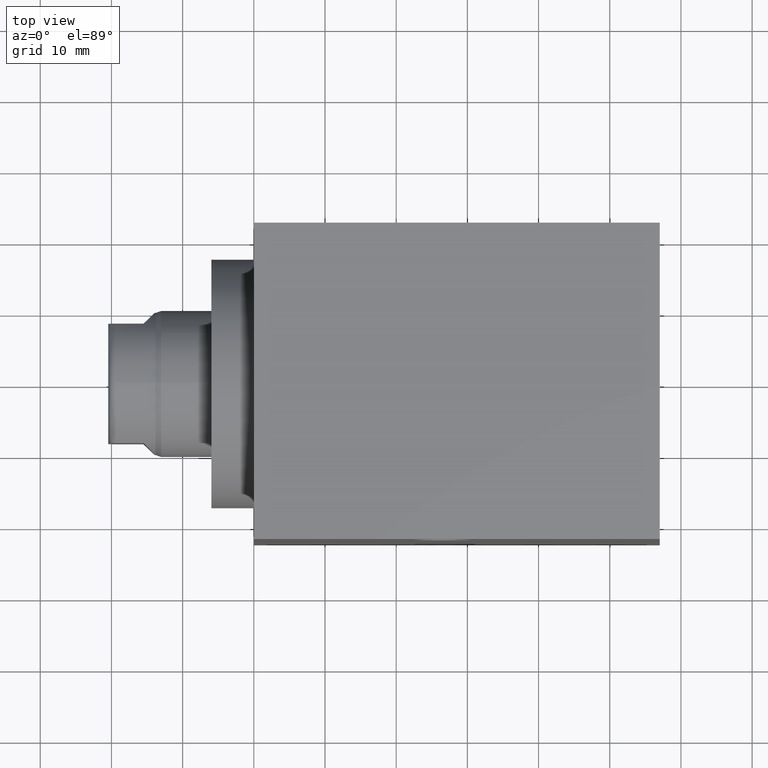
[diagram: clean part render]
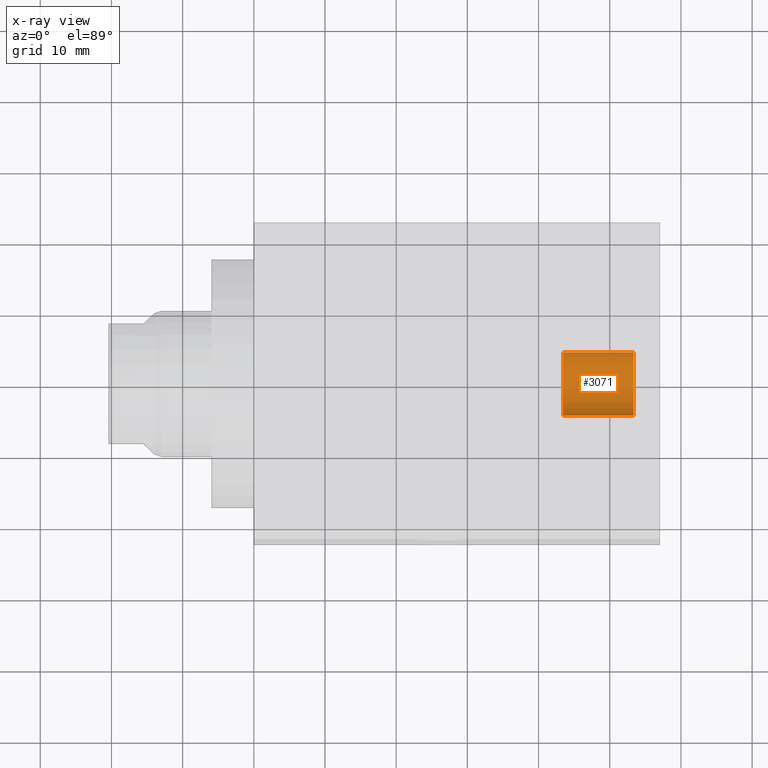
[diagram: x-ray — body ghosted, one internal face saturated and labeled with its STEP entity id]
A machine part, top view, then the same camera in x-ray: the body is ghosted and one INTERNAL B-rep face — a face not visible from any outside direction — is saturated and labeled: STEP entity #3071.
In plain terms, the highlighted cylindrical surface (edge-blend (fillet) strip) has radius 4.4196 mm, axis along (1, 0, 0).
Its self-contained STEP definition (entity closure, byte-faithful):
#2935=CARTESIAN_POINT('',(5.33527E1,0.E0,0.E0));
#2936=DIRECTION('',(1.E0,0.E0,0.E0));
#2937=DIRECTION('',(0.E0,-1.E0,0.E0));
#2938=AXIS2_PLACEMENT_3D('',#2935,#2936,#2937);
#2943=CARTESIAN_POINT('',(4.34086E1,0.E0,0.E0));
#2944=DIRECTION('',(1.E0,0.E0,0.E0));
#2945=DIRECTION('',(0.E0,-1.E0,0.E0));
#2946=AXIS2_PLACEMENT_3D('',#2943,#2944,#2945);
#2951=DIRECTION('',(1.E0,0.E0,0.E0));
#2952=VECTOR('',#2951,9.9441E0);
#2953=CARTESIAN_POINT('',(4.34086E1,-4.4196E0,0.E0));
#2954=LINE('',#2953,#2952);
#2966=DIRECTION('',(1.E0,0.E0,0.E0));
#2967=VECTOR('',#2966,9.9441E0);
#2968=CARTESIAN_POINT('',(4.34086E1,4.4196E0,0.E0));
#2969=LINE('',#2968,#2967);
#2973=CARTESIAN_POINT('',(4.34086E1,-4.4196E0,0.E0));
#2974=CARTESIAN_POINT('',(5.33527E1,-4.4196E0,0.E0));
#2975=VERTEX_POINT('',#2973);
#2976=VERTEX_POINT('',#2974);
#2979=CARTESIAN_POINT('',(4.34086E1,4.4196E0,0.E0));
#2980=CARTESIAN_POINT('',(5.33527E1,4.4196E0,0.E0));
#2981=VERTEX_POINT('',#2979);
#2982=VERTEX_POINT('',#2980);
#3057=CARTESIAN_POINT('',(4.288028E1,0.E0,0.E0));
#3058=DIRECTION('',(1.E0,0.E0,0.E0));
#3059=DIRECTION('',(0.E0,-1.E0,0.E0));
#3060=AXIS2_PLACEMENT_3D('',#3057,#3058,#3059);
#3061=CYLINDRICAL_SURFACE('',#3060,4.4196E0);
#3063=ORIENTED_EDGE('',*,*,#3062,.T.);
#3064=ORIENTED_EDGE('',*,*,#3052,.T.);
#3066=ORIENTED_EDGE('',*,*,#3065,.F.);
#3068=ORIENTED_EDGE('',*,*,#3067,.F.);
#3069=EDGE_LOOP('',(#3063,#3064,#3066,#3068));
#3070=FACE_OUTER_BOUND('',#3069,.F.);
#3071=ADVANCED_FACE('',(#3070),#3061,.T.);
#2939=CIRCLE('',#2938,4.4196E0);
#2947=CIRCLE('',#2946,4.4196E0);
#3052=EDGE_CURVE('',#2976,#2982,#2939,.T.);
#3062=EDGE_CURVE('',#2975,#2976,#2954,.T.);
#3065=EDGE_CURVE('',#2981,#2982,#2969,.T.);
#3067=EDGE_CURVE('',#2975,#2981,#2947,.T.);